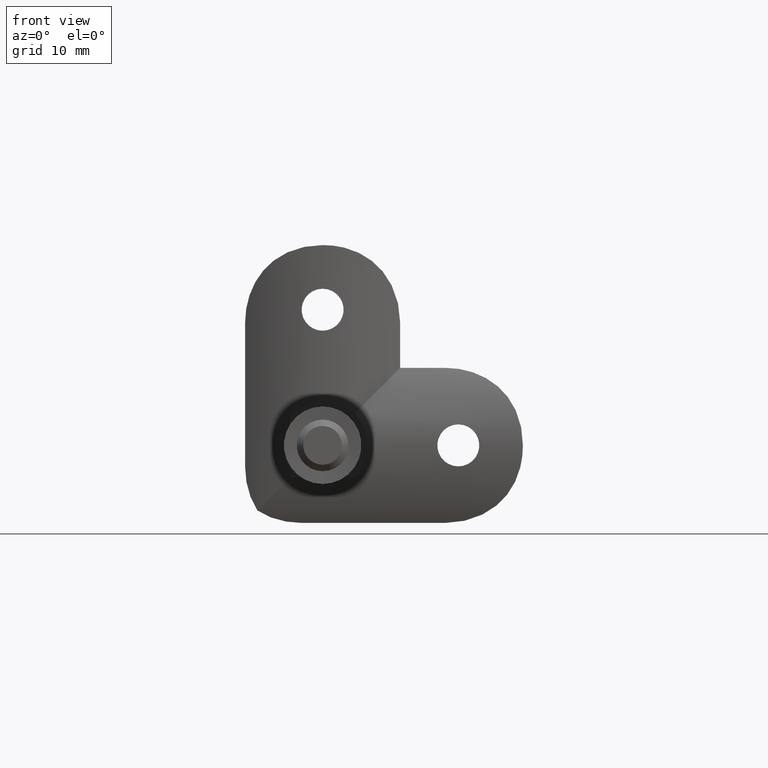
[diagram: clean part render]
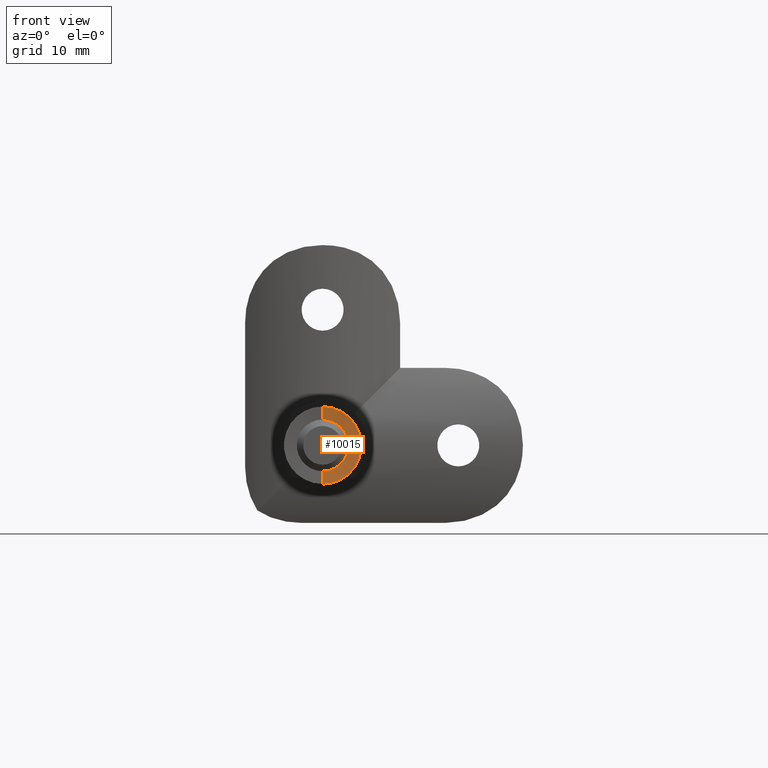
[diagram: same view with one face highlighted and labeled with its STEP entity id]
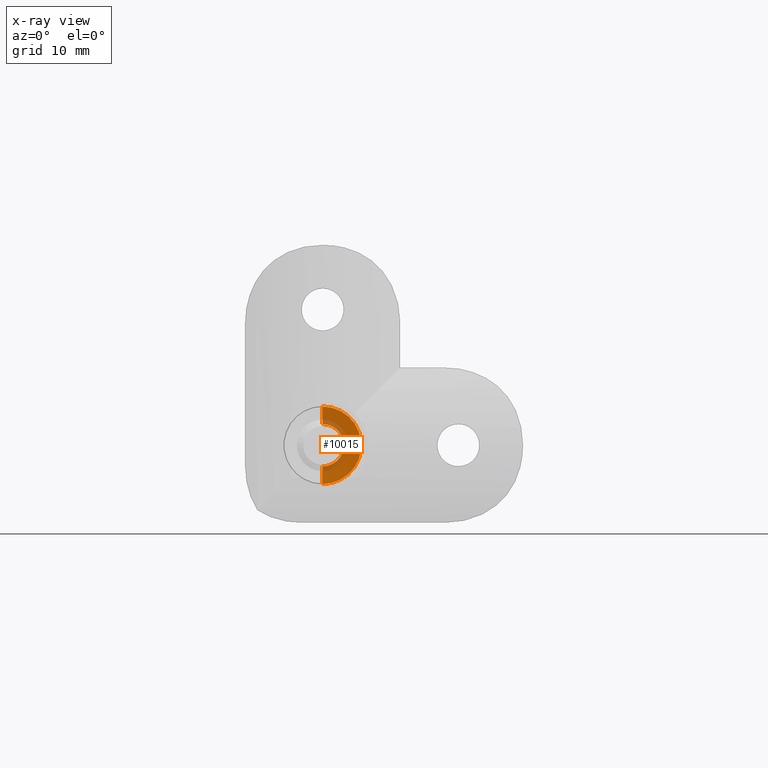
[diagram: x-ray of the same camera — body ghosted, the highlighted face saturated]
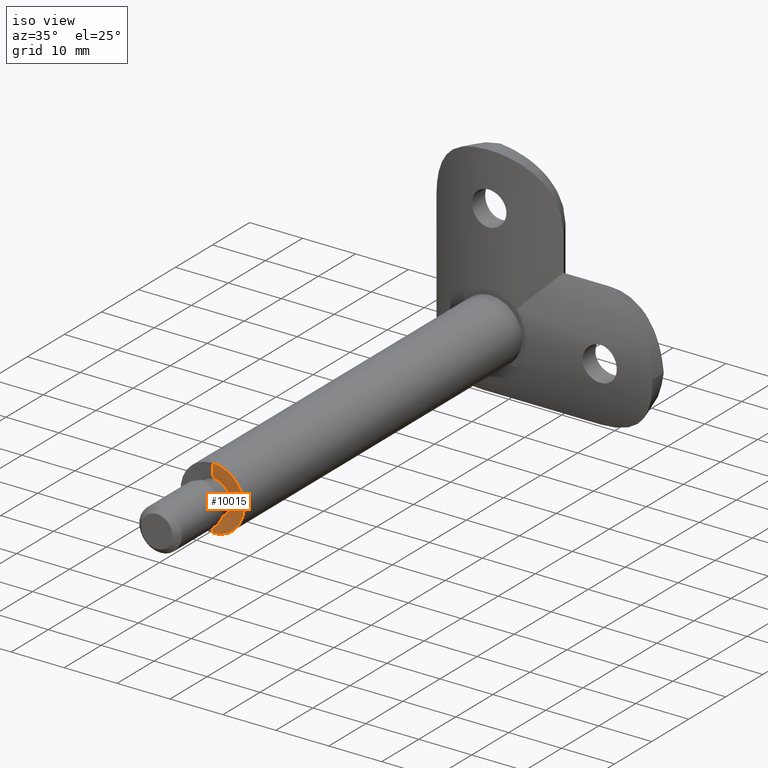
[diagram: same view with one face highlighted and labeled with its STEP entity id]
A machine part, front view. The second image highlights one B-rep face of the part: STEP entity #10015.
The next image is the same camera in x-ray: the body ghosted, the highlighted face saturated — about 21% of this face is hidden behind the body in this view.
A second angle (iso view) of the same face is appended — the face is thin or edge-on in the first view.
In plain terms, the highlighted conical surface has half-angle 85 deg.
Its self-contained STEP definition (entity closure, byte-faithful):
#57 = AXIS2_PLACEMENT_3D ( 'NONE', #8677, #1908, #11508 ) ;
#721 = CARTESIAN_POINT ( 'NONE',  ( 0.0000000000000000000, 0.0000000000000000000, 0.0000000000000000000 ) ) ;
#825 = DIRECTION ( 'NONE',  ( 0.0000000000000000000, 0.0000000000000000000, -1.000000000000000000 ) ) ;
#1135 = CARTESIAN_POINT ( 'NONE',  ( 0.0000000000000000000, 0.2386875398333737600, -3.271788935686913200 ) ) ;
#1601 = EDGE_CURVE ( 'NONE', #11589, #6836, #12815, .T. ) ;
#1626 = EDGE_CURVE ( 'NONE', #6871, #4632, #3298, .T. ) ;
#1694 = ORIENTED_EDGE ( 'NONE', *, *, #1601, .F. ) ;
#1908 = DIRECTION ( 'NONE',  ( -0.0000000000000000000, -1.000000000000000000, -0.0000000000000000000 ) ) ;
#2642 = EDGE_CURVE ( 'NONE', #6836, #4632, #12802, .T. ) ;
#3298 = CIRCLE ( 'NONE', #5153, 6.000000000000000000 ) ;
#3307 = ORIENTED_EDGE ( 'NONE', *, *, #2642, .F. ) ;
#3681 = CARTESIAN_POINT ( 'NONE',  ( 0.0000000000000000000, 0.2386875398333737600, 0.0000000000000000000 ) ) ;
#3900 = EDGE_LOOP ( 'NONE', ( #3307, #1694, #11670, #7473 ) ) ;
#4034 = DIRECTION ( 'NONE',  ( 1.219986648345620700E-016, -0.08715574274765171300, 0.9961946980917461000 ) ) ;
#4632 = VERTEX_POINT ( 'NONE', #11404 ) ;
#5153 = AXIS2_PLACEMENT_3D ( 'NONE', #721, #6801, #825 ) ;
#5220 = VECTOR ( 'NONE', #13139, 1000.000000000000000 ) ;
#5308 = CONICAL_SURFACE ( 'NONE', #9958, 3.271788935686913200, 1.483529864195186600 ) ;
#5955 = DIRECTION ( 'NONE',  ( -0.0000000000000000000, -1.000000000000000000, -0.0000000000000000000 ) ) ;
#6076 = FACE_OUTER_BOUND ( 'NONE', #3900, .T. ) ;
#6495 = VECTOR ( 'NONE', #4034, 1000.000000000000000 ) ;
#6801 = DIRECTION ( 'NONE',  ( -0.0000000000000000000, -1.000000000000000000, -0.0000000000000000000 ) ) ;
#6836 = VERTEX_POINT ( 'NONE', #11814 ) ;
#6871 = VERTEX_POINT ( 'NONE', #13428 ) ;
#7473 = ORIENTED_EDGE ( 'NONE', *, *, #1626, .T. ) ;
#7479 = EDGE_CURVE ( 'NONE', #11589, #6871, #9721, .T. ) ;
#7712 = CARTESIAN_POINT ( 'NONE',  ( 4.006785847574703800E-016, 0.2386875398333737600, 3.271788935686913200 ) ) ;
#8677 = CARTESIAN_POINT ( 'NONE',  ( 0.0000000000000000000, 0.2386875398333737600, 0.0000000000000000000 ) ) ;
#9549 = DIRECTION ( 'NONE',  ( 0.0000000000000000000, 0.0000000000000000000, -1.000000000000000000 ) ) ;
#9721 = LINE ( 'NONE', #1135, #5220 ) ;
#9958 = AXIS2_PLACEMENT_3D ( 'NONE', #3681, #5955, #9549 ) ;
#10015 = ADVANCED_FACE ( 'NONE', ( #6076 ), #5308, .F. ) ;
#11404 = CARTESIAN_POINT ( 'NONE',  ( 7.347880794884131600E-016, 0.0000000000000000000, 6.000000000000010700 ) ) ;
#11508 = DIRECTION ( 'NONE',  ( 0.0000000000000000000, 0.0000000000000000000, -1.000000000000000000 ) ) ;
#11589 = VERTEX_POINT ( 'NONE', #11767 ) ;
#11670 = ORIENTED_EDGE ( 'NONE', *, *, #7479, .T. ) ;
#11767 = CARTESIAN_POINT ( 'NONE',  ( 0.0000000000000000000, 0.2386875398333737600, -3.271788935686918500 ) ) ;
#11814 = CARTESIAN_POINT ( 'NONE',  ( 4.006785847574710200E-016, 0.2386875398333737600, 3.271788935686918500 ) ) ;
#12802 = LINE ( 'NONE', #7712, #6495 ) ;
#12815 = CIRCLE ( 'NONE', #57, 3.271788935686913200 ) ;
#13139 = DIRECTION ( 'NONE',  ( 0.0000000000000000000, -0.08715574274765171300, -0.9961946980917461000 ) ) ;
#13428 = CARTESIAN_POINT ( 'NONE',  ( 0.0000000000000000000, 0.0000000000000000000, -6.000000000000010700 ) ) ;